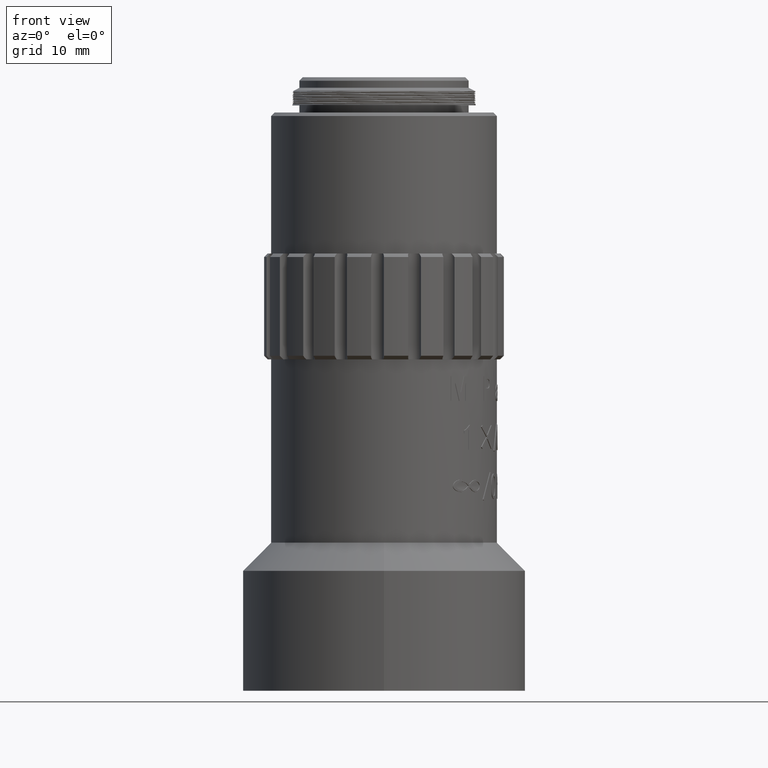
[diagram: clean part render]
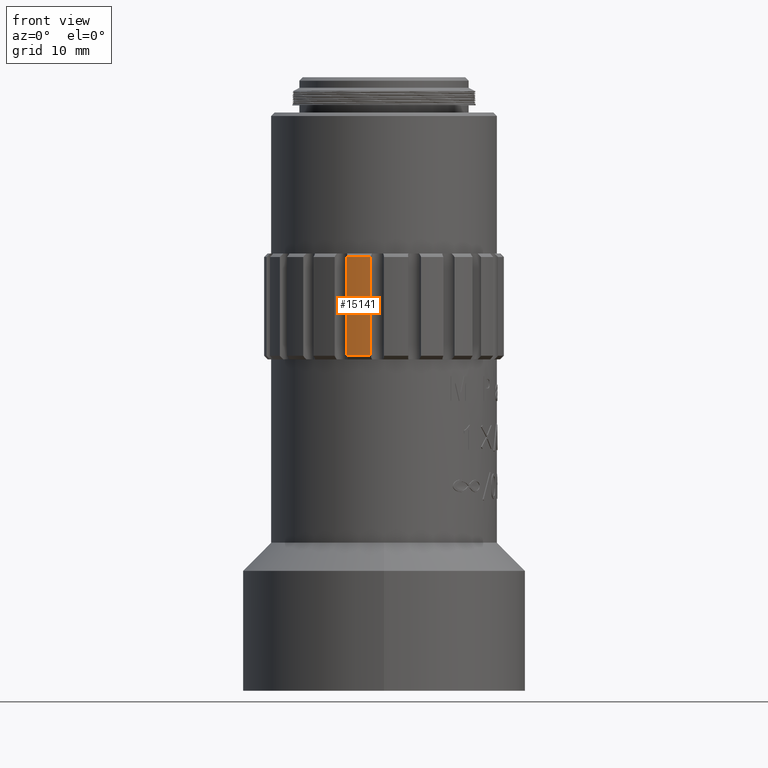
[diagram: same view with one face highlighted and labeled with its STEP entity id]
A machine part, front view. The second image highlights one B-rep face of the part: STEP entity #15141.
In plain terms, the highlighted cylindrical surface (partial cylindrical patch) has radius 17 mm, axis along (0, 0, 1).
Its self-contained STEP definition (entity closure, byte-faithful):
#441 = VECTOR ( 'NONE', #7917, 1000.000000000000000 ) ;
#863 = LINE ( 'NONE', #11401, #16360 ) ;
#901 = CARTESIAN_POINT ( 'NONE',  ( -105.2614081662234184, -83.12817323313825568, 7.499999999999978684 ) ) ;
#965 = CARTESIAN_POINT ( 'NONE',  ( -105.2614081662234184, -83.12817323313825568, -7.000000000000002665 ) ) ;
#1023 = VERTEX_POINT ( 'NONE', #3320 ) ;
#1574 = DIRECTION ( 'NONE',  ( 1.000000000000000000, 0.000000000000000000, 0.000000000000000000 ) ) ;
#1649 = EDGE_CURVE ( 'NONE', #1023, #3553, #14592, .T. ) ;
#2868 = ORIENTED_EDGE ( 'NONE', *, *, #18318, .F. ) ;
#3186 = CARTESIAN_POINT ( 'NONE',  ( -105.2614081662234184, -83.12817323313825568, -6.500000000000005329 ) ) ;
#3320 = CARTESIAN_POINT ( 'NONE',  ( -110.5146970705975207, -99.29613401015585339, -6.500000000000005329 ) ) ;
#3553 = VERTEX_POINT ( 'NONE', #14290 ) ;
#3758 = AXIS2_PLACEMENT_3D ( 'NONE', #901, #9733, #3827 ) ;
#3827 = DIRECTION ( 'NONE',  ( 1.000000000000000000, -3.265361837132815953E-15, 0.000000000000000000 ) ) ;
#4204 = EDGE_LOOP ( 'NONE', ( #2868, #19213, #19684, #10695 ) ) ;
#4317 = EDGE_CURVE ( 'NONE', #3553, #8097, #863, .T. ) ;
#4909 = LINE ( 'NONE', #17256, #441 ) ;
#5359 = CIRCLE ( 'NONE', #3758, 16.99999999999998579 ) ;
#7090 = DIRECTION ( 'NONE',  ( 0.000000000000000000, 0.000000000000000000, 1.000000000000000000 ) ) ;
#7174 = CARTESIAN_POINT ( 'NONE',  ( -110.5146970705975207, -99.29613401015586760, 7.499999999999978684 ) ) ;
#7917 = DIRECTION ( 'NONE',  ( -0.000000000000000000, -0.000000000000000000, 1.000000000000000000 ) ) ;
#8097 = VERTEX_POINT ( 'NONE', #12915 ) ;
#8505 = AXIS2_PLACEMENT_3D ( 'NONE', #3186, #15420, #1574 ) ;
#8595 = DIRECTION ( 'NONE',  ( 1.000000000000000000, 0.000000000000000000, 0.000000000000000000 ) ) ;
#9733 = DIRECTION ( 'NONE',  ( 0.000000000000000000, 0.000000000000000000, -1.000000000000000000 ) ) ;
#10695 = ORIENTED_EDGE ( 'NONE', *, *, #19373, .T. ) ;
#11401 = CARTESIAN_POINT ( 'NONE',  ( -107.1280357646718500, -100.0253831036674939, -7.000000000000002665 ) ) ;
#12914 = FACE_OUTER_BOUND ( 'NONE', #4204, .T. ) ;
#12915 = CARTESIAN_POINT ( 'NONE',  ( -107.1280357646718500, -100.0253831036674939, 7.499999999999978684 ) ) ;
#13492 = CYLINDRICAL_SURFACE ( 'NONE', #16124, 16.99999999999998579 ) ;
#14000 = VERTEX_POINT ( 'NONE', #7174 ) ;
#14290 = CARTESIAN_POINT ( 'NONE',  ( -107.1280357646718500, -100.0253831036674939, -6.500000000000005329 ) ) ;
#14592 = CIRCLE ( 'NONE', #8505, 16.99999999999998579 ) ;
#14615 = DIRECTION ( 'NONE',  ( 0.000000000000000000, -0.000000000000000000, 1.000000000000000000 ) ) ;
#15141 = ADVANCED_FACE ( 'NONE', ( #12914 ), #13492, .T. ) ;
#15420 = DIRECTION ( 'NONE',  ( -0.000000000000000000, -0.000000000000000000, 1.000000000000000000 ) ) ;
#16124 = AXIS2_PLACEMENT_3D ( 'NONE', #965, #7090, #8595 ) ;
#16360 = VECTOR ( 'NONE', #14615, 1000.000000000000000 ) ;
#17256 = CARTESIAN_POINT ( 'NONE',  ( -110.5146970705975207, -99.29613401015585339, -7.000000000000002665 ) ) ;
#18318 = EDGE_CURVE ( 'NONE', #1023, #14000, #4909, .T. ) ;
#19213 = ORIENTED_EDGE ( 'NONE', *, *, #1649, .T. ) ;
#19373 = EDGE_CURVE ( 'NONE', #8097, #14000, #5359, .T. ) ;
#19684 = ORIENTED_EDGE ( 'NONE', *, *, #4317, .T. ) ;